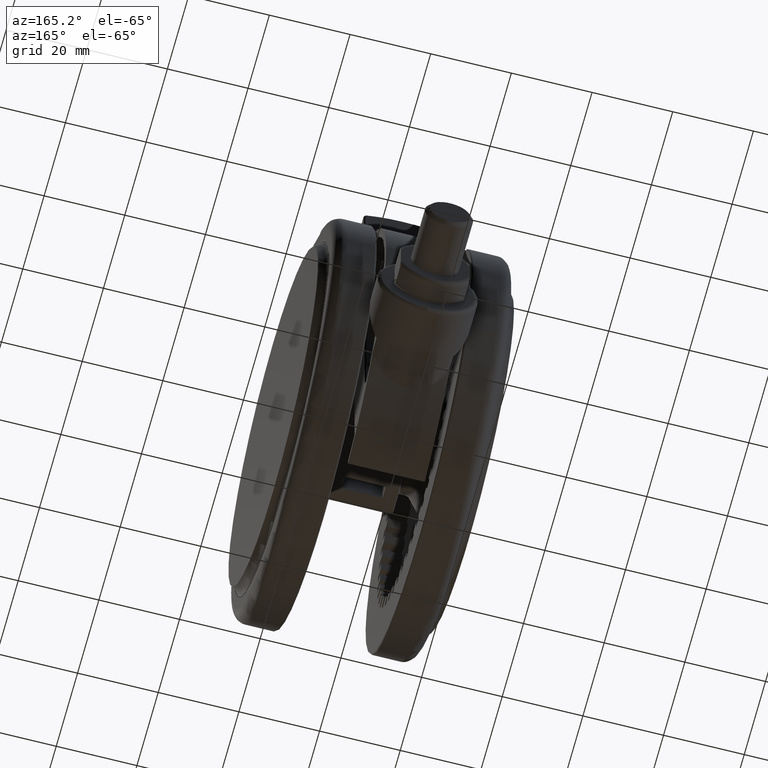
[diagram: clean part render]
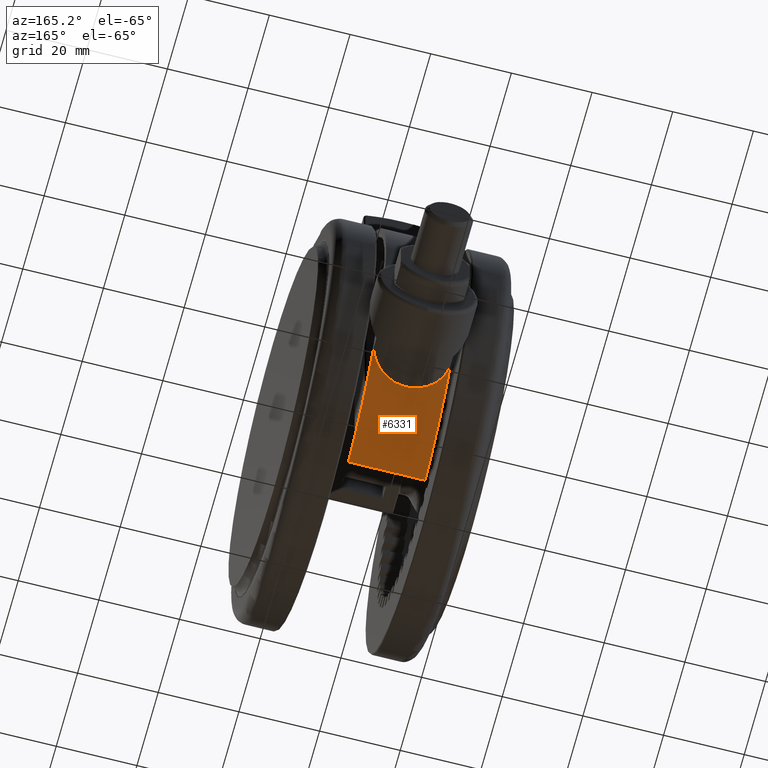
[diagram: same view with one face highlighted and labeled with its STEP entity id]
A machine part, auxiliary view. The second image highlights one B-rep face of the part: STEP entity #6331.
In plain terms, the highlighted cylindrical surface (partial cylindrical patch) has radius 50 mm, axis along (-1, 0, -0).
Its self-contained STEP definition (entity closure, byte-faithful):
#1571 = CARTESIAN_POINT ( 'NONE',  ( -34.18871064049903900, -36.48476154389398800, -32.83915778883793000 ) ) ;
#1729 = CARTESIAN_POINT ( 'NONE',  ( -36.09326724600050800, -34.60168511526687500, -30.73579949498943300 ) ) ;
#1905 = CARTESIAN_POINT ( 'NONE',  ( -37.72742056007386700, -32.81221933876857100, -24.00770164411783400 ) ) ;
#2070 = CARTESIAN_POINT ( 'NONE',  ( -37.31689872523924800, -33.27835986009030500, -20.87483004962538400 ) ) ;
#2229 = CARTESIAN_POINT ( 'NONE',  ( -35.59718382081288700, -35.11429071728594700, -17.12017626975241700 ) ) ;
#2451 = DIRECTION ( 'NONE',  ( -2.126349141558171200E-017, -1.779100357716780700E-016, -1.000000000000000000 ) ) ;
#4660 = CIRCLE ( 'NONE', #12582, 50.00000000000000000 ) ;
#4882 = DIRECTION ( 'NONE',  ( 1.000000000000000000, 1.067883571208054300E-016, -3.469446951953614200E-017 ) ) ;
#5351 = CARTESIAN_POINT ( 'NONE',  ( -34.29288990464157600, -36.38679042535216000, -32.76208389114204800 ) ) ;
#5519 = CARTESIAN_POINT ( 'NONE',  ( -36.59771754745315100, -34.06892858752121400, -29.82475463302112600 ) ) ;
#5682 = CARTESIAN_POINT ( 'NONE',  ( -37.69123459779096000, -32.85378250809415600, -23.25875986144025400 ) ) ;
#5843 = CARTESIAN_POINT ( 'NONE',  ( -37.16268891530106100, -33.45110870720961300, -20.26802367117061000 ) ) ;
#6010 = CARTESIAN_POINT ( 'NONE',  ( -35.00197835031620700, -35.70589945023508000, -16.45673910144243400 ) ) ;
#6331 = ADVANCED_FACE ( 'NONE', ( #7864 ), #35611, .T. ) ;
#7864 = FACE_OUTER_BOUND ( 'NONE', #36149, .T. ) ;
#8094 = CARTESIAN_POINT ( 'NONE',  ( -2.020031684480262600E-016, -5.159592291784555900E-015, -33.79999999999995500 ) ) ;
#9090 = EDGE_CURVE ( 'NONE', #33121, #18011, #44747, .T. ) ;
#9150 = CARTESIAN_POINT ( 'NONE',  ( -34.67847468081328100, -36.02259843663026100, -32.46738158160381700 ) ) ;
#9312 = CARTESIAN_POINT ( 'NONE',  ( -36.98444995232170400, -33.64767337381376000, -28.85244482626054500 ) ) ;
#9484 = CARTESIAN_POINT ( 'NONE',  ( -37.65198884829154500, -32.89875199348075800, -22.81123102368416200 ) ) ;
#9648 = CARTESIAN_POINT ( 'NONE',  ( -36.70046858691684800, -33.95727959054358500, -19.03021689852306500 ) ) ;
#9808 = CARTESIAN_POINT ( 'NONE',  ( -34.63963226215736300, -36.05716634666075000, -16.12144361542922500 ) ) ;
#9819 = EDGE_CURVE ( 'NONE', #18011, #31313, #26632, .T. ) ;
#10027 = CARTESIAN_POINT ( 'NONE',  ( -47.80670531797670700, -14.64646464646464700, -14.79999999999995100 ) ) ;
#10153 = CARTESIAN_POINT ( 'NONE',  ( -32.12403840463594700, -38.31509045503450700, -14.79999999999995300 ) ) ;
#11898 = DIRECTION ( 'NONE',  ( -1.000000000000000000, -1.067883571208054300E-016, 0.0000000000000000000 ) ) ;
#12582 = AXIS2_PLACEMENT_3D ( 'NONE', #43541, #20905, #47341 ) ;
#12845 = EDGE_CURVE ( 'NONE', #22983, #33121, #32077, .T. ) ;
#12961 = CARTESIAN_POINT ( 'NONE',  ( -35.44067592295424200, -35.27041211930942000, -31.66187379050731100 ) ) ;
#13121 = CARTESIAN_POINT ( 'NONE',  ( -37.16940470234045800, -33.44309982805508200, -28.27631121025104500 ) ) ;
#13288 = CARTESIAN_POINT ( 'NONE',  ( -37.62730254866878700, -32.92698418948012300, -22.58655718073090700 ) ) ;
#13457 = CARTESIAN_POINT ( 'NONE',  ( -36.42248523555787900, -34.25506623938138500, -18.45084457819068300 ) ) ;
#13621 = CARTESIAN_POINT ( 'NONE',  ( -34.42855383075186600, -36.25845492202547100, -15.94830099442340400 ) ) ;
#16751 = CARTESIAN_POINT ( 'NONE',  ( -35.78652116577914200, -34.91896835886084500, -31.20386254521234200 ) ) ;
#16919 = CARTESIAN_POINT ( 'NONE',  ( -37.26106686952010000, -33.34086187254301600, -27.94611248231604300 ) ) ;
#17082 = CARTESIAN_POINT ( 'NONE',  ( -37.53810011566732600, -33.02873721342446300, -21.93390471861028200 ) ) ;
#17235 = CARTESIAN_POINT ( 'NONE',  ( -36.22481259833247000, -34.46399058006397100, -18.08821197765285000 ) ) ;
#17403 = CARTESIAN_POINT ( 'NONE',  ( -34.36343508477920500, -36.32017561434445700, -15.89721210537177500 ) ) ;
#18011 = VERTEX_POINT ( 'NONE', #29610 ) ;
#18493 = CARTESIAN_POINT ( 'NONE',  ( -47.80670531797670700, -14.64646464646464700, -14.79999999999995100 ) ) ;
#20354 = CARTESIAN_POINT ( 'NONE',  ( -33.47112494297424900, -37.14491371734087000, -33.28789916120126700 ) ) ;
#20524 = CARTESIAN_POINT ( 'NONE',  ( -35.99919553598415000, -34.69959086387142800, -30.88664248414129400 ) ) ;
#20690 = CARTESIAN_POINT ( 'NONE',  ( -37.28692987240627600, -33.31193546800766100, -27.84773115021833700 ) ) ;
#20858 = CARTESIAN_POINT ( 'NONE',  ( -37.41532364989151900, -33.16771651198610000, -21.29456323546957800 ) ) ;
#20905 = DIRECTION ( 'NONE',  ( 2.126349141558171200E-017, 1.779100357716780700E-016, 1.000000000000000000 ) ) ;
#21028 = CARTESIAN_POINT ( 'NONE',  ( -36.14486403006539900, -34.54778351006460500, -17.95191337277101300 ) ) ;
#21187 = CARTESIAN_POINT ( 'NONE',  ( -32.93632475842446900, -37.63405544468293600, -15.00704004669549500 ) ) ;
#22025 = VECTOR ( 'NONE', #2451, 1000.000000000000000 ) ;
#22983 = VERTEX_POINT ( 'NONE', #18493 ) ;
#24188 = CARTESIAN_POINT ( 'NONE',  ( -34.04114394600856700, -36.62272535003232600, -32.94360000546706900 ) ) ;
#24196 = ORIENTED_EDGE ( 'NONE', *, *, #9090, .T. ) ;
#24355 = CARTESIAN_POINT ( 'NONE',  ( -36.07827384832725000, -34.61731754484142000, -30.76019602690876200 ) ) ;
#24524 = CARTESIAN_POINT ( 'NONE',  ( -37.72667130563736000, -32.81308082199323900, -25.51326617930497100 ) ) ;
#24681 = CARTESIAN_POINT ( 'NONE',  ( -37.33401568358108600, -33.25915570764770000, -20.94450826853733700 ) ) ;
#24853 = CARTESIAN_POINT ( 'NONE',  ( -35.86658510468876000, -34.83840316452166500, -17.49143007598861700 ) ) ;
#25087 = ORIENTED_EDGE ( 'NONE', *, *, #9819, .T. ) ;
#25824 = ORIENTED_EDGE ( 'NONE', *, *, #30812, .F. ) ;
#26632 = B_SPLINE_CURVE_WITH_KNOTS ( 'NONE', 3,
 ( #42984, #35419, #31616, #20354, #46803, #24188, #1571, #28002, #5351, #31775, #9150, #35575, #12961, #39360, #16751, #43153, #20524, #46961, #24355, #1729, #28167, #5519, #31943, #9312, #35747, #13121, #39526, #16919, #43333, #20690, #47125, #24524, #1905, #28328, #5682, #32109, #9484, #35908, #13288, #39694, #17082, #43493, #20858, #47296, #24681, #2070, #28497, #5843, #32271, #9648, #36078, #13457, #39862, #17235, #43653, #21028, #47473, #24853, #2229, #28673, #6010, #32424, #9808, #36243, #13621, #40018, #17403, #43830, #21187, #47630 ),
 .UNSPECIFIED., .F., .F.,
 ( 4, 2, 1, 1, 1, 2, 2, 2, 2, 1, 1, 2, 2, 2, 2, 1, 1, 2, 2, 2, 2, 1, 2, 2, 2, 1, 1, 2, 2, 2, 2, 1, 1, 2, 2, 2, 2, 1, 1, 2, 2, 4 ),
 ( 0.0000000000000000000, 0.06250000000000023600, 0.09375000000000065200, 0.1093750000000008600, 0.1171875000000009600, 0.1210937500000014600, 0.1250000000000019400, 0.1874999999999977000, 0.2187499999999953600, 0.2343749999999939200, 0.2421874999999932600, 0.2460937499999930900, 0.2499999999999929500, 0.3124999999999885600, 0.3437499999999862300, 0.3593749999999849000, 0.3671874999999842300, 0.3710937499999842900, 0.3749999999999842900, 0.4999999999999832900, 0.5312499999999831200, 0.5468749999999831200, 0.5546874999999830100, 0.5624999999999829000, 0.5937499999999817900, 0.6093749999999814600, 0.6171874999999813500, 0.6210937499999812400, 0.6249999999999811300, 0.6874999999999821300, 0.7187499999999827900, 0.7343749999999832400, 0.7421874999999836800, 0.7460937499999839000, 0.7499999999999841200, 0.8124999999999886800, 0.8437499999999909000, 0.8593749999999920100, 0.8671874999999923400, 0.8710937499999926700, 0.8749999999999928900, 1.000000000000000000 ),
 .UNSPECIFIED. ) ;
#28002 = CARTESIAN_POINT ( 'NONE',  ( -34.25130445588094100, -36.42593799122978000, -32.79308796653023700 ) ) ;
#28167 = CARTESIAN_POINT ( 'NONE',  ( -36.36986337231447700, -34.31289385851399500, -30.28043021496837600 ) ) ;
#28328 = CARTESIAN_POINT ( 'NONE',  ( -37.71843996565846900, -32.82255396730249000, -23.70754885830939800 ) ) ;
#28497 = CARTESIAN_POINT ( 'NONE',  ( -37.30790920989749500, -33.28843755603158200, -20.83889342433607100 ) ) ;
#28673 = CARTESIAN_POINT ( 'NONE',  ( -35.15548171894425900, -35.55468087673803300, -16.61600918983972600 ) ) ;
#29449 = AXIS2_PLACEMENT_3D ( 'NONE', #8094, #34526, #11898 ) ;
#29610 = CARTESIAN_POINT ( 'NONE',  ( -32.12403840463594700, -38.31509045503450700, -33.79999999999995500 ) ) ;
#30618 = AXIS2_PLACEMENT_3D ( 'NONE', #42526, #42687, #4882 ) ;
#30812 = EDGE_CURVE ( 'NONE', #22983, #31313, #4660, .T. ) ;
#31313 = VERTEX_POINT ( 'NONE', #10153 ) ;
#31616 = CARTESIAN_POINT ( 'NONE',  ( -32.91906115891493600, -37.63746394861338700, -33.55523827995644800 ) ) ;
#31775 = CARTESIAN_POINT ( 'NONE',  ( -34.31274652645726800, -36.36806705901759100, -32.74709739644021800 ) ) ;
#31943 = CARTESIAN_POINT ( 'NONE',  ( -36.89351901911390300, -33.74743635570672500, -29.10060216485619800 ) ) ;
#32077 = LINE ( 'NONE', #10027, #22025 ) ;
#32109 = CARTESIAN_POINT ( 'NONE',  ( -37.67419706141804200, -32.87332735489306400, -23.03472540846654900 ) ) ;
#32271 = CARTESIAN_POINT ( 'NONE',  ( -36.99640792676802200, -33.63555748422570000, -19.75708853571503800 ) ) ;
#32424 = CARTESIAN_POINT ( 'NONE',  ( -34.76202998411207500, -35.93902763543094600, -16.23101237620689500 ) ) ;
#33121 = VERTEX_POINT ( 'NONE', #42679 ) ;
#34526 = DIRECTION ( 'NONE',  ( 2.126349141558171200E-017, 1.779100357716780700E-016, 1.000000000000000000 ) ) ;
#35419 = CARTESIAN_POINT ( 'NONE',  ( -32.53170146423691700, -37.97329865375606100, -33.69623421302765100 ) ) ;
#35575 = CARTESIAN_POINT ( 'NONE',  ( -34.99755747385133000, -35.71197130699533800, -32.16728140506390300 ) ) ;
#35611 = CYLINDRICAL_SURFACE ( 'NONE', #30618, 50.00000000000000000 ) ;
#35747 = CARTESIAN_POINT ( 'NONE',  ( -37.10962394447583500, -33.50939683336971300, -28.47004904455606000 ) ) ;
#35908 = CARTESIAN_POINT ( 'NONE',  ( -37.63603152371256800, -32.91700591041863800, -22.66235478231617500 ) ) ;
#36078 = CARTESIAN_POINT ( 'NONE',  ( -36.59406196103132200, -34.07202084390574000, -18.79451486379096900 ) ) ;
#36149 = EDGE_LOOP ( 'NONE', ( #24196, #25087, #25824, #41252 ) ) ;
#36243 = CARTESIAN_POINT ( 'NONE',  ( -34.49252833873583100, -36.19767272266231100, -15.99937894774211600 ) ) ;
#39360 = CARTESIAN_POINT ( 'NONE',  ( -35.58246277233998000, -35.12728478887276400, -31.48419502736400600 ) ) ;
#39526 = CARTESIAN_POINT ( 'NONE',  ( -37.23429283232786000, -33.37077632623414300, -28.04583883585288700 ) ) ;
#39694 = CARTESIAN_POINT ( 'NONE',  ( -37.58251479947082200, -32.97813730035134900, -22.22206409546963400 ) ) ;
#39862 = CARTESIAN_POINT ( 'NONE',  ( -36.33370454684031600, -34.34932155627552000, -18.28148012701499400 ) ) ;
#40018 = CARTESIAN_POINT ( 'NONE',  ( -34.38569670367482400, -36.29910101383248400, -15.91452357569759700 ) ) ;
#41252 = ORIENTED_EDGE ( 'NONE', *, *, #12845, .T. ) ;
#42526 = CARTESIAN_POINT ( 'NONE',  ( 2.020031684480262600E-016, -1.779301612122672900E-015, -14.79999999999995500 ) ) ;
#42679 = CARTESIAN_POINT ( 'NONE',  ( -47.80670531797670700, -14.64646464646465100, -33.79999999999994700 ) ) ;
#42687 = DIRECTION ( 'NONE',  ( -2.126349141558171200E-017, -1.779100357716780700E-016, -1.000000000000000000 ) ) ;
#42984 = CARTESIAN_POINT ( 'NONE',  ( -32.12403840463594700, -38.31509045503450700, -33.79999999999995500 ) ) ;
#43153 = CARTESIAN_POINT ( 'NONE',  ( -35.88639470081733400, -34.81640338778236600, -31.06024271977734200 ) ) ;
#43333 = CARTESIAN_POINT ( 'NONE',  ( -37.27868678258919000, -33.32115974008785000, -27.87941658467040900 ) ) ;
#43493 = CARTESIAN_POINT ( 'NONE',  ( -37.45842529909910500, -33.11899733783679500, -21.50681829034573800 ) ) ;
#43541 = CARTESIAN_POINT ( 'NONE',  ( 2.020031684480262600E-016, -1.779301612122672900E-015, -14.79999999999995500 ) ) ;
#43653 = CARTESIAN_POINT ( 'NONE',  ( -36.17699705539665400, -34.51413370293438000, -18.00630928014252100 ) ) ;
#43830 = CARTESIAN_POINT ( 'NONE',  ( -33.67350113738653800, -36.97218770089946100, -15.36742604076278300 ) ) ;
#44747 = CIRCLE ( 'NONE', #29449, 50.00000000000000000 ) ;
#46803 = CARTESIAN_POINT ( 'NONE',  ( -33.73991292833539300, -36.90143508618617600, -33.14026829703659200 ) ) ;
#46961 = CARTESIAN_POINT ( 'NONE',  ( -36.04674763138156400, -34.65014434421257800, -30.81094728901973300 ) ) ;
#47125 = CARTESIAN_POINT ( 'NONE',  ( -37.58501714429105100, -32.97809629345243100, -26.68190859808843000 ) ) ;
#47296 = CARTESIAN_POINT ( 'NONE',  ( -37.35927654057920900, -33.23079222800549100, -21.04918661681228500 ) ) ;
#47341 = DIRECTION ( 'NONE',  ( -1.000000000000000000, -1.067883571208054300E-016, 3.469446951953614200E-017 ) ) ;
#47473 = CARTESIAN_POINT ( 'NONE',  ( -36.12770660375957700, -34.56572447908613600, -17.92322606596905700 ) ) ;
#47630 = CARTESIAN_POINT ( 'NONE',  ( -32.12403840463594700, -38.31509045503450700, -14.79999999999995300 ) ) ;